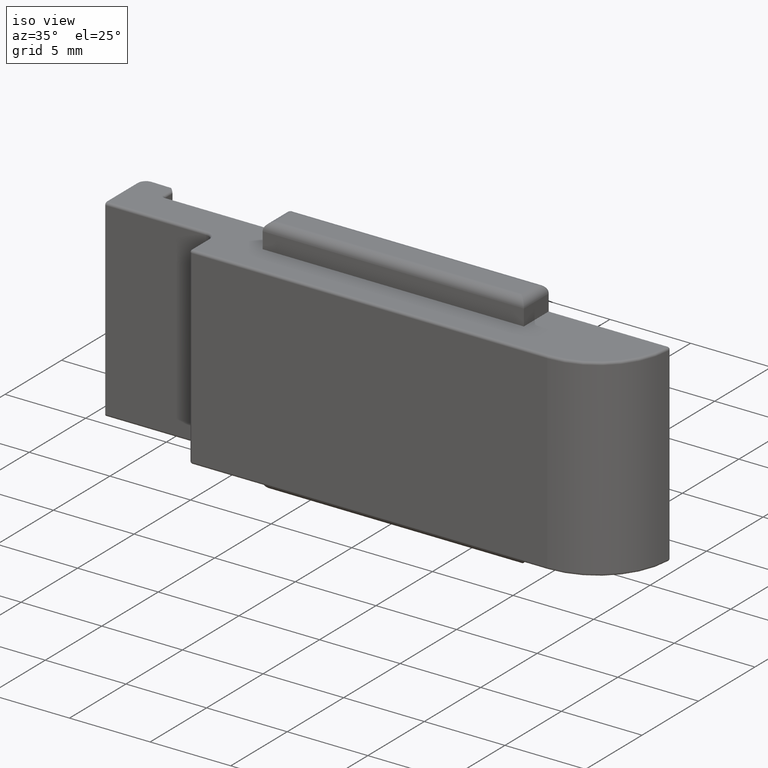
[diagram: clean part render]
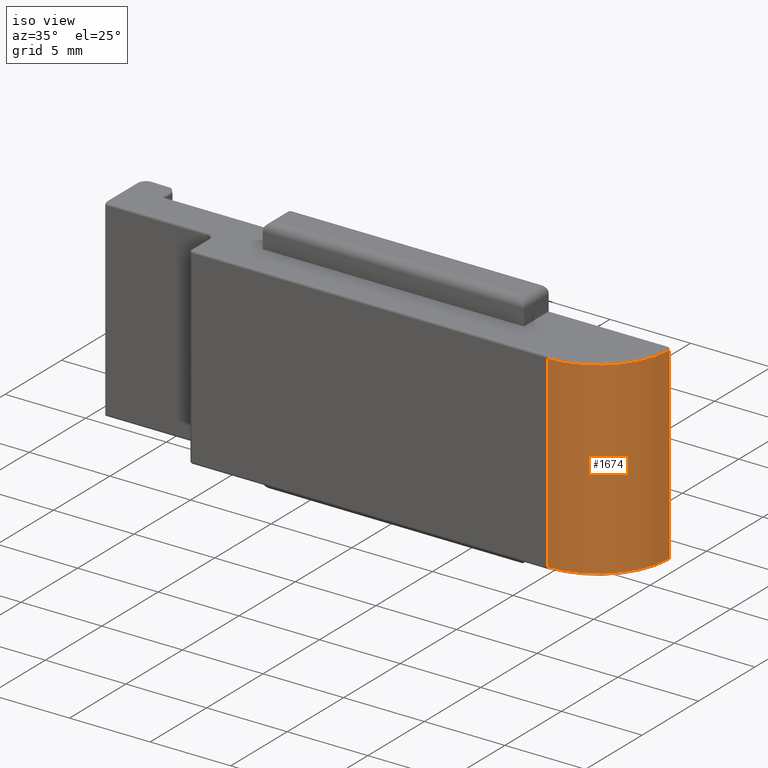
[diagram: same view with one face highlighted and labeled with its STEP entity id]
A machine part, iso view. The second image highlights one B-rep face of the part: STEP entity #1674.
In plain terms, the highlighted cylindrical surface (partial cylindrical patch) has radius 4.5 mm, axis along (0, -0, -1).
Its self-contained STEP definition (entity closure, byte-faithful):
#29 = DIRECTION ( 'NONE',  ( -1.000000000000000000, 0.000000000000000000, 0.000000000000000000 ) ) ;
#73 = DIRECTION ( 'NONE',  ( -0.000000000000000000, 6.162975822039132834E-33, 1.000000000000000000 ) ) ;
#135 = CARTESIAN_POINT ( 'NONE',  ( 26.69732381778301189, -0.7551724137931024039, 0.1499999999999973577 ) ) ;
#136 = DIRECTION ( 'NONE',  ( -0.000000000000000000, 6.162975822039132834E-33, 1.000000000000000000 ) ) ;
#153 = EDGE_CURVE ( 'NONE', #435, #743, #912, .T. ) ;
#231 = AXIS2_PLACEMENT_3D ( 'NONE', #862, #2056, #29 ) ;
#435 = VERTEX_POINT ( 'NONE', #1714 ) ;
#438 = CARTESIAN_POINT ( 'NONE',  ( 22.20000000000005613, -0.5999999999999963141, 0.1499999999999973577 ) ) ;
#451 = CIRCLE ( 'NONE', #1641, 4.500000000000014211 ) ;
#494 = EDGE_CURVE ( 'NONE', #520, #743, #1262, .T. ) ;
#520 = VERTEX_POINT ( 'NONE', #894 ) ;
#557 = DIRECTION ( 'NONE',  ( -1.000000000000000000, 0.000000000000000000, 0.000000000000000000 ) ) ;
#595 = EDGE_CURVE ( 'NONE', #435, #1818, #451, .T. ) ;
#743 = VERTEX_POINT ( 'NONE', #985 ) ;
#765 = ORIENTED_EDGE ( 'NONE', *, *, #986, .T. ) ;
#862 = CARTESIAN_POINT ( 'NONE',  ( 22.20000000000005613, -0.5999999999999963141, 12.00000000000001066 ) ) ;
#894 = CARTESIAN_POINT ( 'NONE',  ( 26.69732381778301189, -0.7551724137931024039, 11.85000000000000675 ) ) ;
#912 = LINE ( 'NONE', #1581, #1230 ) ;
#981 = CARTESIAN_POINT ( 'NONE',  ( 26.69732381778301189, -0.7551724137931024039, 12.00000000000001066 ) ) ;
#985 = CARTESIAN_POINT ( 'NONE',  ( 22.20000000000005258, -5.100000000000000533, 11.85000000000000675 ) ) ;
#986 = EDGE_CURVE ( 'NONE', #1818, #520, #1120, .T. ) ;
#1074 = VECTOR ( 'NONE', #136, 1000.000000000000000 ) ;
#1120 = LINE ( 'NONE', #981, #1074 ) ;
#1161 = ORIENTED_EDGE ( 'NONE', *, *, #494, .T. ) ;
#1230 = VECTOR ( 'NONE', #73, 1000.000000000000000 ) ;
#1239 = ORIENTED_EDGE ( 'NONE', *, *, #595, .T. ) ;
#1262 = CIRCLE ( 'NONE', #1710, 4.500000000000014211 ) ;
#1448 = CYLINDRICAL_SURFACE ( 'NONE', #231, 4.500000000000014211 ) ;
#1528 = ORIENTED_EDGE ( 'NONE', *, *, #153, .F. ) ;
#1581 = CARTESIAN_POINT ( 'NONE',  ( 22.20000000000005258, -5.100000000000000533, 12.00000000000001066 ) ) ;
#1641 = AXIS2_PLACEMENT_3D ( 'NONE', #438, #2133, #1959 ) ;
#1658 = EDGE_LOOP ( 'NONE', ( #765, #1161, #1528, #1239 ) ) ;
#1674 = ADVANCED_FACE ( 'NONE', ( #1860 ), #1448, .T. ) ;
#1710 = AXIS2_PLACEMENT_3D ( 'NONE', #1729, #2108, #557 ) ;
#1714 = CARTESIAN_POINT ( 'NONE',  ( 22.20000000000005258, -5.100000000000000533, 0.1499999999999973577 ) ) ;
#1729 = CARTESIAN_POINT ( 'NONE',  ( 22.20000000000005613, -0.5999999999999963141, 11.85000000000000675 ) ) ;
#1818 = VERTEX_POINT ( 'NONE', #135 ) ;
#1860 = FACE_OUTER_BOUND ( 'NONE', #1658, .T. ) ;
#1959 = DIRECTION ( 'NONE',  ( -1.000000000000000000, 0.000000000000000000, 0.000000000000000000 ) ) ;
#2056 = DIRECTION ( 'NONE',  ( 0.000000000000000000, -6.162975822039132834E-33, -1.000000000000000000 ) ) ;
#2108 = DIRECTION ( 'NONE',  ( 0.000000000000000000, -6.162975822039132834E-33, -1.000000000000000000 ) ) ;
#2133 = DIRECTION ( 'NONE',  ( -0.000000000000000000, 6.162975822039132834E-33, 1.000000000000000000 ) ) ;